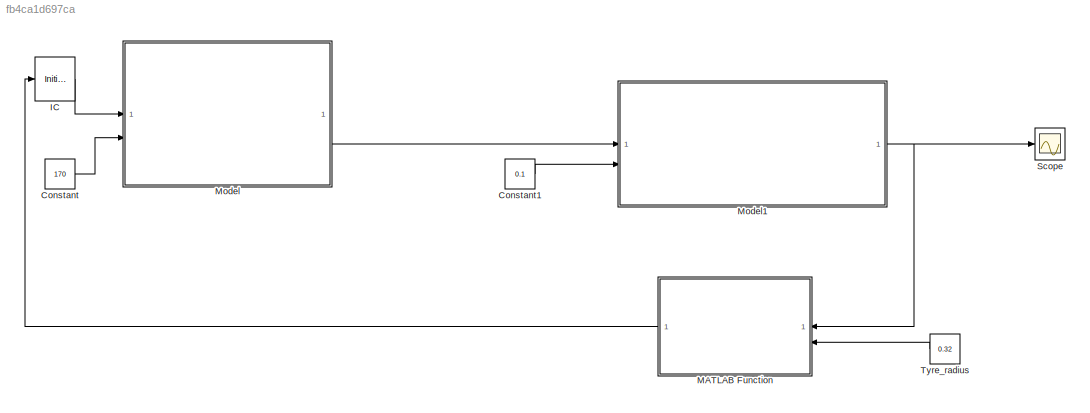
MODEL slx_fb4ca1d697ca
KIND model
CONFIG AbsTol = auto
CONFIG EnableMultiTasking = off
CONFIG FixedStep = auto
CONFIG MaxStep = auto
CONFIG MinStep = auto
CONFIG RelTol = 1e-6
CONFIG SampleTimeConstraint = Unconstrained
CONFIG SolverName = VariableStepAuto
CONFIG StartTime = 0.0
CONFIG StopTime = 10
BLOCK [Constant] Constant
  Value = 170
BLOCK [Constant] Constant1
  Value = 0.1
BLOCK [InitialCondition] IC
  Value = 200
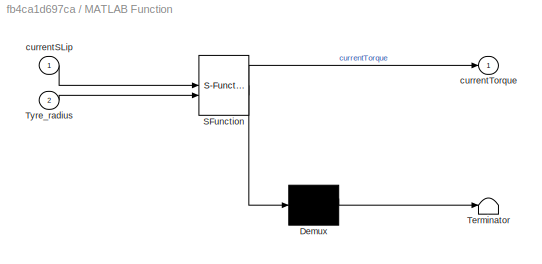
BLOCK [SubSystem] MATLAB Function
  ErrorFcn = Stateflow.Translate.translate
  LibrarySourceBlock = simulink/User-Defined\nFunctions/MATLAB Function
  PermitHierarchicalResolution = ExplicitOnly
  SFBlockType = MATLAB Function
  TreatAsAtomicUnit = on
BLOCK [Demux] MATLAB Function/ Demux 
  Outputs = 1
BLOCK [S-Function] MATLAB Function/ SFunction 
  EnableBusSupport = on
  FunctionName = sf_sfun
  PortCounts = [2 2]
  SFcnIsStateOwnerBlock = off
  SFunctionDeploymentMode = off
  Tag = Stateflow S-Function 1
BLOCK [Terminator] MATLAB Function/ Terminator 
BLOCK [Inport] MATLAB Function/Tyre_radius
  Port = 2
BLOCK [Inport] MATLAB Function/currentSLip
BLOCK [Outport] MATLAB Function/currentTorque
BLOCK [ModelReference] Model
  ModelNameDialog = Slip_ratio.slx
  ModelReferenceVersion = 1.5
BLOCK [ModelReference] Model1
  ModelNameDialog = Controller
  ModelReferenceVersion = 1.8
BLOCK [Scope] Scope
  Floating = off
  NumInputPorts = 1
  ScopeSpecificationString = Simulink.scopes.TimeScopeBlockCfg('CurrentConfiguration', extmgr.ConfigurationSet(extmgr.Configuration('Core','General UI',true),extmgr.Configuration('Core','Source UI',true),extmgr.Configuration('Sources','WiredSimulink',true),extmgr.Configuration('Visuals','Time Domain',true,'SerializedDisplays',{struct('MinYLimReal','0.01755','MaxYLimReal','0.01807','YLabelReal','','MinYLimMag','0.01755','MaxYL...<+1357ch>
BLOCK [Constant] Tyre_radius
  Value = 0.32
LINE Constant1:1 -> Model1:2
LINE Constant:1 -> Model:2
LINE IC:1 -> Model:1
LINE MATLAB Function:1 -> IC:1
NET Model1:1 -> MATLAB Function:1, Scope:1
LINE Model:1 -> Model1:1
LINE Tyre_radius:1 -> MATLAB Function:2
note: NET lines group one-source signal fan-out (src -> all destinations, sorted); 1:1 wires keep LINE
CHART MATLAB Function states=1 transitions=1
  STATE_LABEL 'eML_blk_kernel()'
  STATE_LABEL 'SCRIPT:\nfunction currentTorque = Torque_calc(currentSLip, Tyre_radius)\n    % TCS_ACTIVE Summary of this function goes here\n\n    e = exp(1); % Mathematical constant e\n    % Friction curve as a function of slip ratio\n    c1 = 1.2801; % Coef for dry asphalt\n    c2 = 23.99; % Coef for dry asphalt\n    c3 = 0.52; % Coef for dry asphalt\n    Fn = 1350; % Normal force on one tire\n    \n\n %   plot(slip_ratio...<+368ch>'
CHART  states=0 transitions=0
